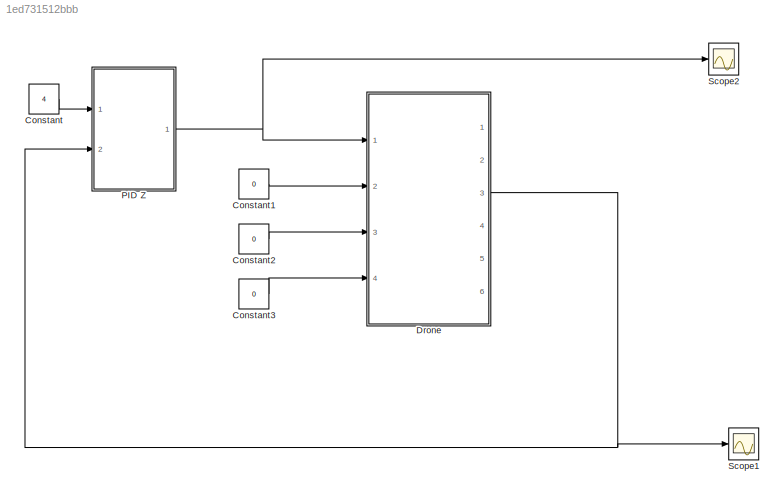
MODEL slx_1ed731512bbb
KIND model
CONFIG AbsTol = auto
CONFIG FixedStep = auto
CONFIG MaxStep = auto
CONFIG MinStep = auto
CONFIG PreLoadFcn = init
CONFIG RelTol = 1e-3
CONFIG SampleTimeConstraint = Unconstrained
CONFIG Solver = ode45
CONFIG SolverMode = Auto
CONFIG SolverName = ode45
CONFIG StartTime = 0.0
CONFIG StopTime = 20.0
BLOCK [Constant] Constant
  Value = 4
BLOCK [Constant] Constant1
  Value = 0
BLOCK [Constant] Constant2
  Value = 0
BLOCK [Constant] Constant3
  Value = 0
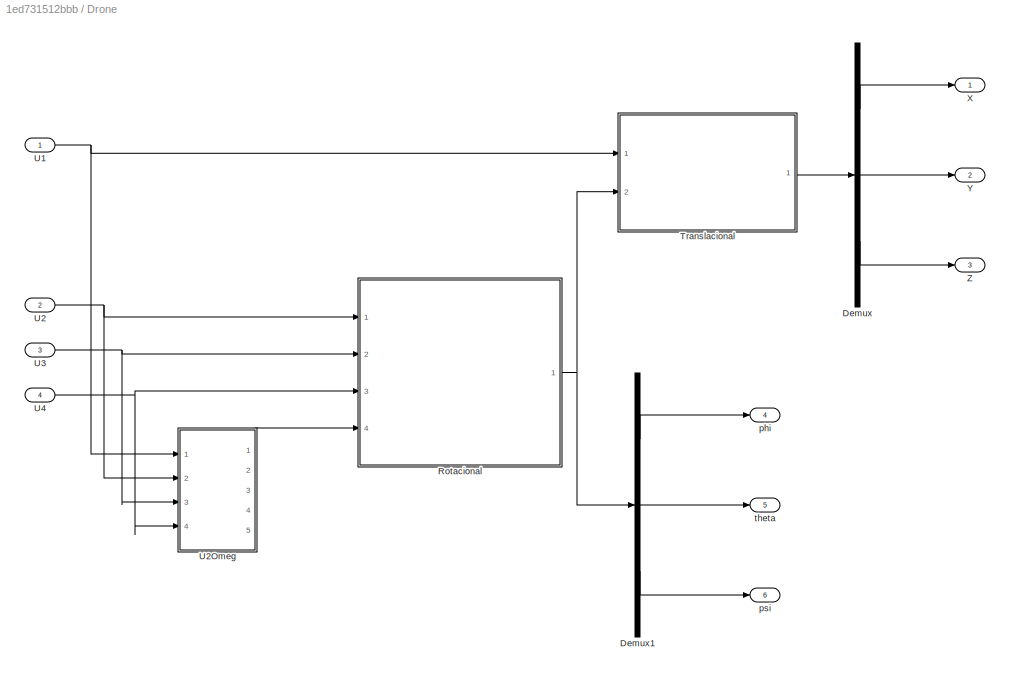
BLOCK [SubSystem] Drone 
  Ports = [4, 6]
  RequestExecContextInheritance = off
BLOCK [Demux] Drone /Demux
  DisplayOption = bar
  Outputs = 3
  Ports = [1, 3]
BLOCK [Demux] Drone /Demux1
  DisplayOption = bar
  Outputs = 3
  Ports = [1, 3]
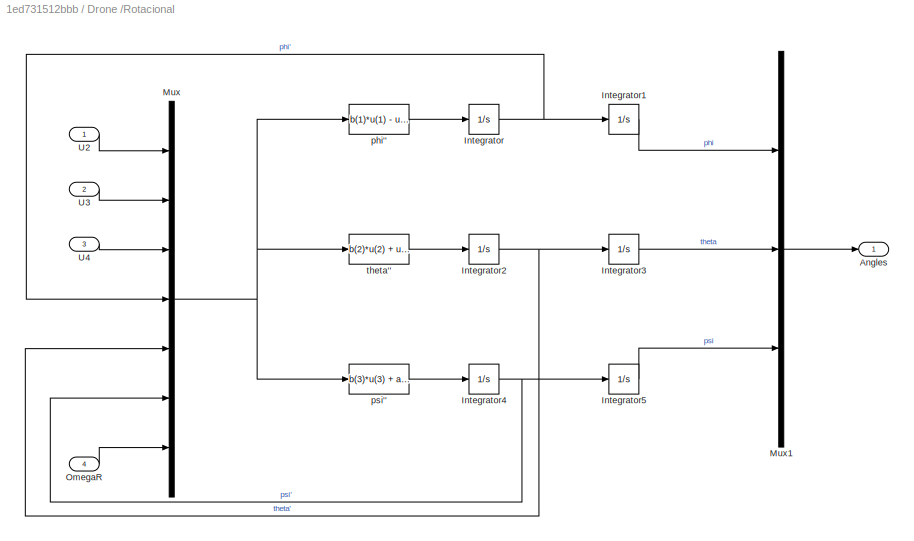
BLOCK [SubSystem] Drone /Rotacional 
  Ports = [4, 1]
  RequestExecContextInheritance = off
BLOCK [Outport] Drone /Rotacional /Angles
  IconDisplay = Port number
BLOCK [Integrator] Drone /Rotacional /Integrator
  Ports = [1, 1]
BLOCK [Integrator] Drone /Rotacional /Integrator1
  Ports = [1, 1]
BLOCK [Integrator] Drone /Rotacional /Integrator2
  Ports = [1, 1]
BLOCK [Integrator] Drone /Rotacional /Integrator3
  Ports = [1, 1]
BLOCK [Integrator] Drone /Rotacional /Integrator4
  Ports = [1, 1]
BLOCK [Integrator] Drone /Rotacional /Integrator5
  Ports = [1, 1]
BLOCK [Mux] Drone /Rotacional /Mux
  DisplayOption = bar
  Inputs = 7
  Ports = [7, 1]
BLOCK [Mux] Drone /Rotacional /Mux1
  DisplayOption = bar
  Inputs = 3
  Ports = [3, 1]
BLOCK [Inport] Drone /Rotacional /OmegaR
  IconDisplay = Port number
  Port = 4
BLOCK [Inport] Drone /Rotacional /U2
  IconDisplay = Port number
BLOCK [Inport] Drone /Rotacional /U3
  IconDisplay = Port number
  Port = 2
BLOCK [Inport] Drone /Rotacional /U4
  IconDisplay = Port number
  Port = 3
BLOCK [Fcn] Drone /Rotacional /phi''
  Expr = b(1)*u(1) - u(5)*u(7)*a(2) + a(1)*u(5)*u(6)
BLOCK [Fcn] Drone /Rotacional /psi''
  Expr = b(3)*u(3) + a(5)*u(4)*u(5)
BLOCK [Fcn] Drone /Rotacional /theta''
  Expr = b(2)*u(2) + u(4)*u(7)*a(4) + a(3)*u(4)*u(6)
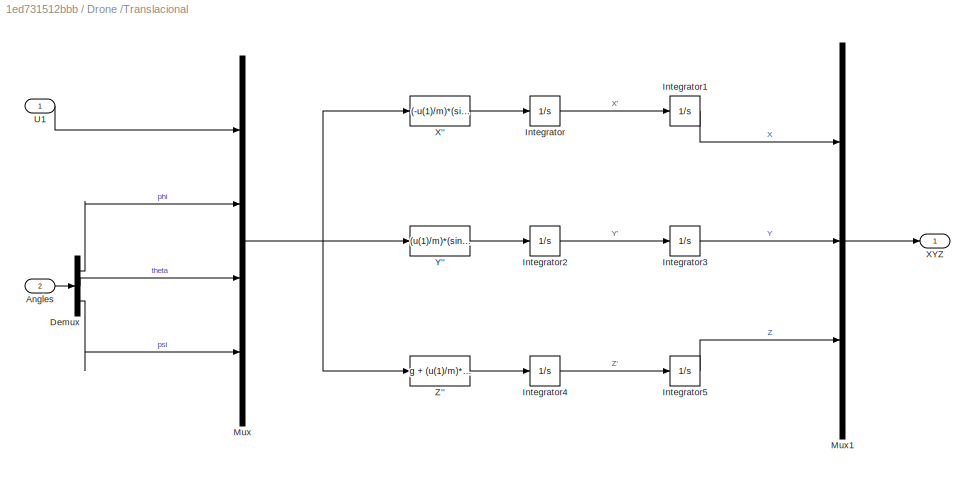
BLOCK [SubSystem] Drone /Translacional
  Ports = [2, 1]
  RequestExecContextInheritance = off
BLOCK [Inport] Drone /Translacional/Angles
  IconDisplay = Port number
  Port = 2
BLOCK [Demux] Drone /Translacional/Demux
  DisplayOption = bar
  Outputs = 3
  Ports = [1, 3]
BLOCK [Integrator] Drone /Translacional/Integrator
  Ports = [1, 1]
BLOCK [Integrator] Drone /Translacional/Integrator1
  Ports = [1, 1]
BLOCK [Integrator] Drone /Translacional/Integrator2
  Ports = [1, 1]
BLOCK [Integrator] Drone /Translacional/Integrator3
  Ports = [1, 1]
BLOCK [Integrator] Drone /Translacional/Integrator4
  Ports = [1, 1]
BLOCK [Integrator] Drone /Translacional/Integrator5
  Ports = [1, 1]
BLOCK [Mux] Drone /Translacional/Mux
  DisplayOption = bar
  Ports = [4, 1]
BLOCK [Mux] Drone /Translacional/Mux1
  DisplayOption = bar
  Inputs = 3
  Ports = [3, 1]
BLOCK [Inport] Drone /Translacional/U1
  IconDisplay = Port number
BLOCK [Fcn] Drone /Translacional/X''
  Expr = (-u(1)/m)*(sin(u(2))*sin(u(4)) + cos(u(2))*sin(u(3))*cos(u(4)))
BLOCK [Outport] Drone /Translacional/XYZ
  IconDisplay = Port number
BLOCK [Fcn] Drone /Translacional/Y''
  Expr = (u(1)/m)*(sin(u(2))*cos(u(4)) - cos(u(2))*sin(u(3))*sin(u(4)))
BLOCK [Fcn] Drone /Translacional/Z''
  Expr = g + (u(1)/m)*(cos(u(2))*cos(u(3)))
BLOCK [Inport] Drone /U1
  IconDisplay = Port number
BLOCK [Inport] Drone /U2
  IconDisplay = Port number
  Port = 2
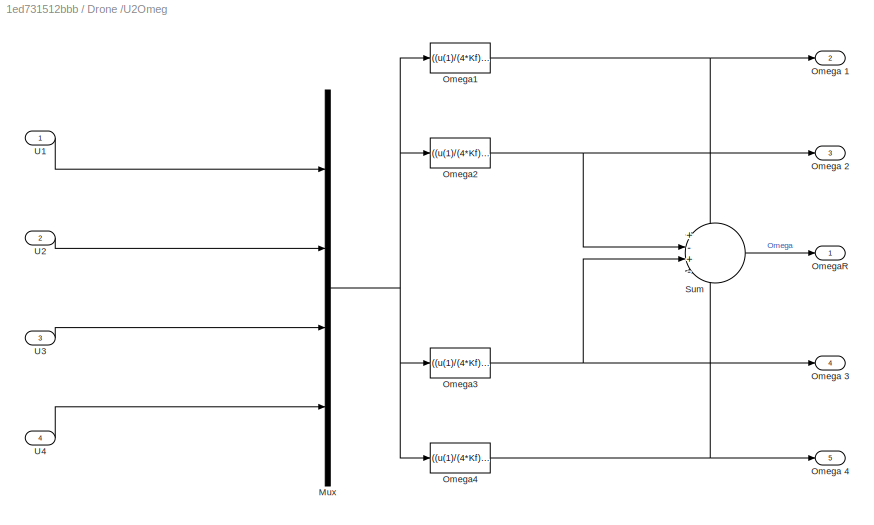
BLOCK [SubSystem] Drone /U2Omeg
  Ports = [4, 5]
  RequestExecContextInheritance = off
BLOCK [Mux] Drone /U2Omeg/Mux
  DisplayOption = bar
  Ports = [4, 1]
BLOCK [Outport] Drone /U2Omeg/Omega 1
  IconDisplay = Port number
  Port = 2
BLOCK [Outport] Drone /U2Omeg/Omega 2
  IconDisplay = Port number
  Port = 3
BLOCK [Outport] Drone /U2Omeg/Omega 3
  IconDisplay = Port number
  Port = 4
BLOCK [Outport] Drone /U2Omeg/Omega 4
  IconDisplay = Port number
  Port = 5
BLOCK [Fcn] Drone /U2Omeg/Omega1
  Expr = ((u(1)/(4*Kf)) + (u(3)/(2*Kf)) + (u(4)/(4*Km)))^(1/2)
BLOCK [Fcn] Drone /U2Omeg/Omega2
  Expr = ((u(1)/(4*Kf)) - (u(2)/(2*Kf)) - (u(4)/(4*Km)))^(1/2)
BLOCK [Fcn] Drone /U2Omeg/Omega3
  Expr = ((u(1)/(4*Kf)) - (u(3)/(2*Kf)) + (u(4)/(4*Km)))^(1/2)
BLOCK [Fcn] Drone /U2Omeg/Omega4
  Expr = ((u(1)/(4*Kf)) + (u(2)/(2*Kf)) - (u(4)/(4*Km)))^(1/2)
BLOCK [Outport] Drone /U2Omeg/OmegaR
  IconDisplay = Port number
BLOCK [Sum] Drone /U2Omeg/Sum
  IconShape = round
  InputSameDT = off
  Inputs = +-+-
  OutDataTypeStr = Inherit: Inherit via internal rule
  Ports = [4, 1]
  SaturateOnIntegerOverflow = off
BLOCK [Inport] Drone /U2Omeg/U1 
  IconDisplay = Port number
BLOCK [Inport] Drone /U2Omeg/U2 
  IconDisplay = Port number
  Port = 2
BLOCK [Inport] Drone /U2Omeg/U3 
  IconDisplay = Port number
  Port = 3
BLOCK [Inport] Drone /U2Omeg/U4 
  IconDisplay = Port number
  Port = 4
BLOCK [Inport] Drone /U3
  IconDisplay = Port number
  Port = 3
BLOCK [Inport] Drone /U4
  IconDisplay = Port number
  Port = 4
BLOCK [Outport] Drone /X
  IconDisplay = Port number
BLOCK [Outport] Drone /Y
  IconDisplay = Port number
  Port = 2
BLOCK [Outport] Drone /Z
  IconDisplay = Port number
  Port = 3
BLOCK [Outport] Drone /phi
  IconDisplay = Port number
  Port = 4
BLOCK [Outport] Drone /psi 
  IconDisplay = Port number
  Port = 6
BLOCK [Outport] Drone /theta
  IconDisplay = Port number
  Port = 5
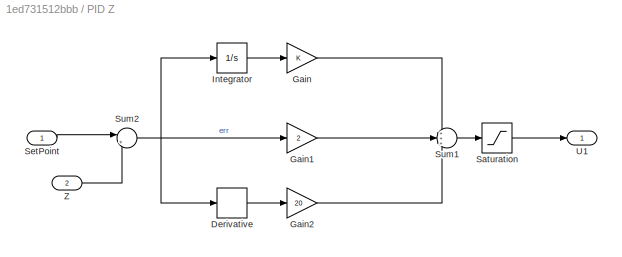
BLOCK [SubSystem] PID Z
  Ports = [2, 1]
  RequestExecContextInheritance = off
BLOCK [Derivative] PID Z/Derivative
BLOCK [Gain] PID Z/Gain
  OutDataTypeStr = Inherit: Inherit via internal rule
  ParamDataTypeStr = Inherit: Inherit via internal rule
  SaturateOnIntegerOverflow = off
BLOCK [Gain] PID Z/Gain1
  Gain = 2
  OutDataTypeStr = Inherit: Inherit via internal rule
  ParamDataTypeStr = Inherit: Inherit via internal rule
  SaturateOnIntegerOverflow = off
BLOCK [Gain] PID Z/Gain2
  Gain = 20
  OutDataTypeStr = Inherit: Inherit via internal rule
  ParamDataTypeStr = Inherit: Inherit via internal rule
  SaturateOnIntegerOverflow = off
BLOCK [Integrator] PID Z/Integrator
  Ports = [1, 1]
BLOCK [Saturate] PID Z/Saturation
  InputPortMap = u0
  LowerLimit = -15
  Ports = [1, 1]
  UpperLimit = 15
BLOCK [Inport] PID Z/SetPoint
  IconDisplay = Port number
BLOCK [Sum] PID Z/Sum1
  IconShape = round
  InputSameDT = off
  Inputs = +++
  OutDataTypeStr = Inherit: Inherit via internal rule
  Ports = [3, 1]
  SaturateOnIntegerOverflow = off
BLOCK [Sum] PID Z/Sum2
  IconShape = round
  InputSameDT = off
  Inputs = |+-
  OutDataTypeStr = Inherit: Inherit via internal rule
  Ports = [2, 1]
  SaturateOnIntegerOverflow = off
BLOCK [Outport] PID Z/U1
  IconDisplay = Port number
BLOCK [Inport] PID Z/Z
  IconDisplay = Port number
  Port = 2
BLOCK [Scope] Scope1
  Floating = off
  NumInputPorts = 1
  Ports = [1]
  SaveName = ScopeData1
  ZoomMode = yonly
BLOCK [Scope] Scope2
  Floating = off
  NumInputPorts = 1
  Ports = [1]
  ZoomMode = xonly
LINE Constant1:1 -> Drone :2
LINE Constant2:1 -> Drone :3
LINE Constant3:1 -> Drone :4
LINE Constant:1 -> PID Z:1
LINE Drone /Demux1:1 -> Drone /phi:1
LINE Drone /Demux1:2 -> Drone /theta:1
LINE Drone /Demux1:3 -> Drone /psi :1
LINE Drone /Demux:1 -> Drone /X:1
LINE Drone /Demux:2 -> Drone /Y:1
LINE Drone /Demux:3 -> Drone /Z:1
LINE Drone /Rotacional /Integrator1:1 -> Drone /Rotacional /Mux1:1
NET Drone /Rotacional /Integrator2:1 -> Drone /Rotacional /Integrator3:1, Drone /Rotacional /Mux:5
LINE Drone /Rotacional /Integrator3:1 -> Drone /Rotacional /Mux1:2
NET Drone /Rotacional /Integrator4:1 -> Drone /Rotacional /Integrator5:1, Drone /Rotacional /Mux:6
LINE Drone /Rotacional /Integrator5:1 -> Drone /Rotacional /Mux1:3
NET Drone /Rotacional /Integrator:1 -> Drone /Rotacional /Integrator1:1, Drone /Rotacional /Mux:4
LINE Drone /Rotacional /Mux1:1 -> Drone /Rotacional /Angles:1
NET Drone /Rotacional /Mux:1 -> Drone /Rotacional /phi'':1, Drone /Rotacional /psi'':1, Drone /Rotacional /theta'':1
LINE Drone /Rotacional /OmegaR:1 -> Drone /Rotacional /Mux:7
LINE Drone /Rotacional /U2:1 -> Drone /Rotacional /Mux:1
LINE Drone /Rotacional /U3:1 -> Drone /Rotacional /Mux:2
LINE Drone /Rotacional /U4:1 -> Drone /Rotacional /Mux:3
LINE Drone /Rotacional /phi'':1 -> Drone /Rotacional /Integrator:1
LINE Drone /Rotacional /psi'':1 -> Drone /Rotacional /Integrator4:1
LINE Drone /Rotacional /theta'':1 -> Drone /Rotacional /Integrator2:1
NET Drone /Rotacional :1 -> Drone /Demux1:1, Drone /Translacional:2
LINE Drone /Translacional/Angles:1 -> Drone /Translacional/Demux:1
LINE Drone /Translacional/Demux:1 -> Drone /Translacional/Mux:2
LINE Drone /Translacional/Demux:2 -> Drone /Translacional/Mux:3
LINE Drone /Translacional/Demux:3 -> Drone /Translacional/Mux:4
LINE Drone /Translacional/Integrator1:1 -> Drone /Translacional/Mux1:1
LINE Drone /Translacional/Integrator2:1 -> Drone /Translacional/Integrator3:1
LINE Drone /Translacional/Integrator3:1 -> Drone /Translacional/Mux1:2
LINE Drone /Translacional/Integrator4:1 -> Drone /Translacional/Integrator5:1
LINE Drone /Translacional/Integrator5:1 -> Drone /Translacional/Mux1:3
LINE Drone /Translacional/Integrator:1 -> Drone /Translacional/Integrator1:1
LINE Drone /Translacional/Mux1:1 -> Drone /Translacional/XYZ:1
NET Drone /Translacional/Mux:1 -> Drone /Translacional/X'':1, Drone /Translacional/Y'':1, Drone /Translacional/Z'':1
LINE Drone /Translacional/U1:1 -> Drone /Translacional/Mux:1
LINE Drone /Translacional/X'':1 -> Drone /Translacional/Integrator:1
LINE Drone /Translacional/Y'':1 -> Drone /Translacional/Integrator2:1
LINE Drone /Translacional/Z'':1 -> Drone /Translacional/Integrator4:1
LINE Drone /Translacional:1 -> Drone /Demux:1
NET Drone /U1:1 -> Drone /Translacional:1, Drone /U2Omeg:1
NET Drone /U2:1 -> Drone /Rotacional :1, Drone /U2Omeg:2
NET Drone /U2Omeg/Mux:1 -> Drone /U2Omeg/Omega1:1, Drone /U2Omeg/Omega2:1, Drone /U2Omeg/Omega3:1, Drone /U2Omeg/Omega4:1
NET Drone /U2Omeg/Omega1:1 -> Drone /U2Omeg/Omega 1:1, Drone /U2Omeg/Sum:1
NET Drone /U2Omeg/Omega2:1 -> Drone /U2Omeg/Omega 2:1, Drone /U2Omeg/Sum:2
NET Drone /U2Omeg/Omega3:1 -> Drone /U2Omeg/Omega 3:1, Drone /U2Omeg/Sum:3
NET Drone /U2Omeg/Omega4:1 -> Drone /U2Omeg/Omega 4:1, Drone /U2Omeg/Sum:4
LINE Drone /U2Omeg/Sum:1 -> Drone /U2Omeg/OmegaR:1
LINE Drone /U2Omeg/U1 :1 -> Drone /U2Omeg/Mux:1
LINE Drone /U2Omeg/U2 :1 -> Drone /U2Omeg/Mux:2
LINE Drone /U2Omeg/U3 :1 -> Drone /U2Omeg/Mux:3
LINE Drone /U2Omeg/U4 :1 -> Drone /U2Omeg/Mux:4
LINE Drone /U2Omeg:1 -> Drone /Rotacional :4
NET Drone /U3:1 -> Drone /Rotacional :2, Drone /U2Omeg:3
NET Drone /U4:1 -> Drone /Rotacional :3, Drone /U2Omeg:4
NET Drone :3 -> PID Z:2, Scope1:1
LINE PID Z/Derivative:1 -> PID Z/Gain2:1
LINE PID Z/Gain1:1 -> PID Z/Sum1:2
LINE PID Z/Gain2:1 -> PID Z/Sum1:3
LINE PID Z/Gain:1 -> PID Z/Sum1:1
LINE PID Z/Integrator:1 -> PID Z/Gain:1
LINE PID Z/Saturation:1 -> PID Z/U1:1
LINE PID Z/SetPoint:1 -> PID Z/Sum2:1
LINE PID Z/Sum1:1 -> PID Z/Saturation:1
NET PID Z/Sum2:1 -> PID Z/Derivative:1, PID Z/Gain1:1, PID Z/Integrator:1
LINE PID Z/Z:1 -> PID Z/Sum2:2
NET PID Z:1 -> Drone :1, Scope2:1
note: NET lines group one-source signal fan-out (src -> all destinations, sorted); 1:1 wires keep LINE
